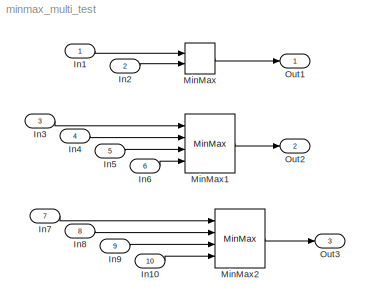
MODEL minmax_multi_test
KIND model
BLOCK [Inport] In1
  IconDisplay = Port number
  PortDimensions = 1
  SID = 1
BLOCK [Inport] In10
  IconDisplay = Port number
  Port = 10
  PortDimensions = [2 3]
  SID = 10
BLOCK [Inport] In2
  IconDisplay = Port number
  Port = 2
  PortDimensions = 5
  SID = 2
BLOCK [Inport] In3
  IconDisplay = Port number
  Port = 3
  PortDimensions = 1
  SID = 3
BLOCK [Inport] In4
  IconDisplay = Port number
  Port = 4
  PortDimensions = 3
  SID = 4
BLOCK [Inport] In5
  IconDisplay = Port number
  Port = 5
  PortDimensions = 3
  SID = 5
BLOCK [Inport] In6
  IconDisplay = Port number
  Port = 6
  PortDimensions = 3
  SID = 6
BLOCK [Inport] In7
  IconDisplay = Port number
  Port = 7
  PortDimensions = 1
  SID = 7
BLOCK [Inport] In8
  IconDisplay = Port number
  Port = 8
  PortDimensions = 1
  SID = 8
BLOCK [Inport] In9
  IconDisplay = Port number
  Port = 9
  PortDimensions = [2 3]
  SID = 9
BLOCK [MinMax] MinMax
  InputSameDT = off
  Inputs = 2
  Ports = [2, 1]
  SID = 11
  SaturateOnIntegerOverflow = off
BLOCK [MinMax] MinMax1
  InputSameDT = off
  Inputs = 4
  Ports = [4, 1]
  SID = 12
  SaturateOnIntegerOverflow = off
BLOCK [MinMax] MinMax2
  InputSameDT = off
  Inputs = 4
  Ports = [4, 1]
  SID = 13
  SaturateOnIntegerOverflow = off
BLOCK [Outport] Out1
  IconDisplay = Port number
  SID = 14
BLOCK [Outport] Out2
  IconDisplay = Port number
  Port = 2
  SID = 15
BLOCK [Outport] Out3
  IconDisplay = Port number
  Port = 3
  SID = 16
LINE In10:1 -> MinMax2:4
LINE In1:1 -> MinMax:1
LINE In2:1 -> MinMax:2
LINE In3:1 -> MinMax1:1
LINE In4:1 -> MinMax1:2
LINE In5:1 -> MinMax1:3
LINE In6:1 -> MinMax1:4
LINE In7:1 -> MinMax2:1
LINE In8:1 -> MinMax2:2
LINE In9:1 -> MinMax2:3
LINE MinMax1:1 -> Out2:1
LINE MinMax2:1 -> Out3:1
LINE MinMax:1 -> Out1:1
